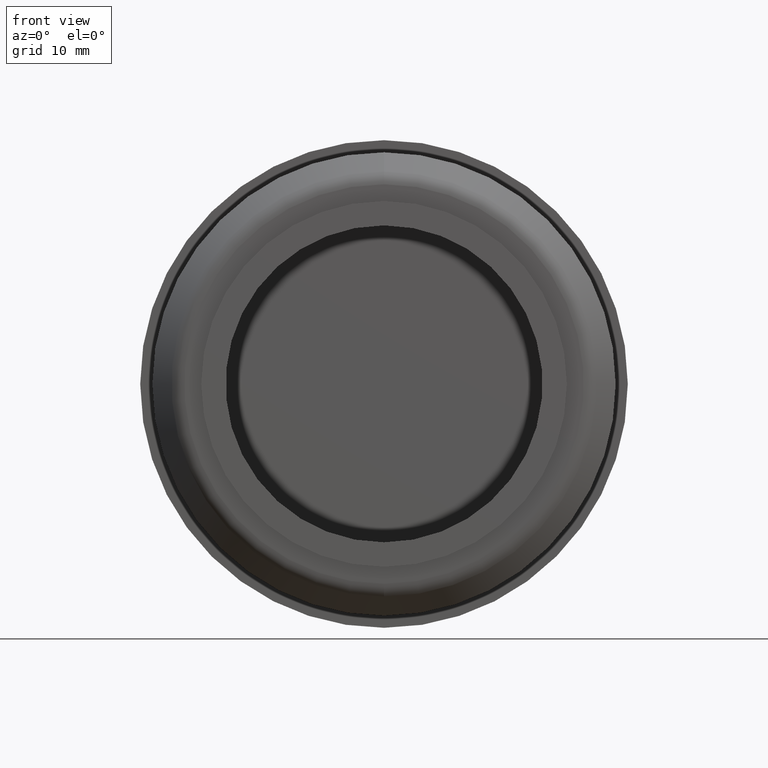
[diagram: clean part render]
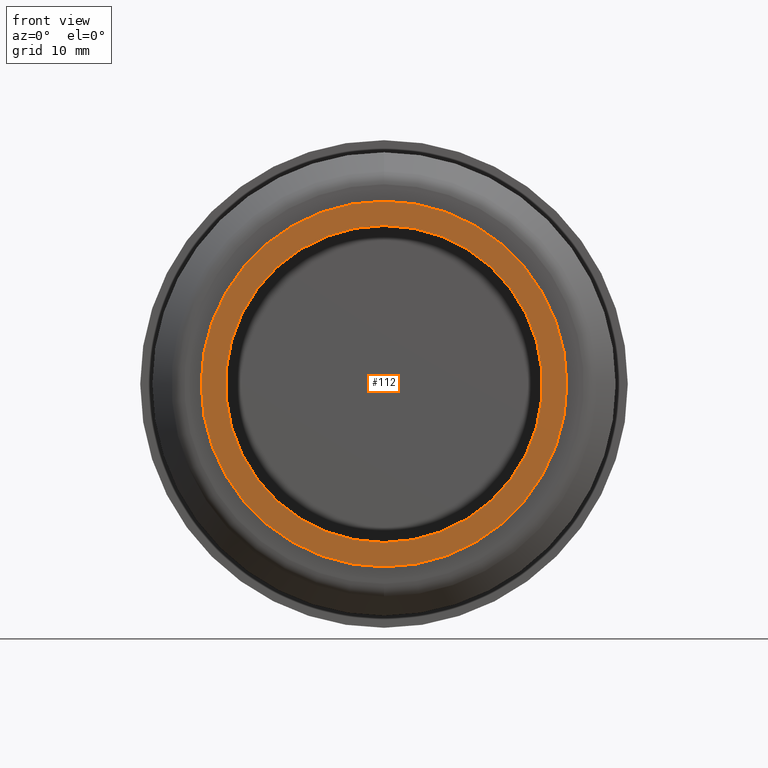
[diagram: same view with one face highlighted and labeled with its STEP entity id]
A machine part, front view. The second image highlights one B-rep face of the part: STEP entity #112.
In plain terms, the highlighted planar face has unit normal (0, -1, -0).
Its self-contained STEP definition (entity closure, byte-faithful):
#35 = AXIS2_PLACEMENT_3D ( 'NONE', #127, #1096, #320 ) ;
#112 = ADVANCED_FACE ( 'NONE', ( #839, #932 ), #309, .T. ) ;
#113 = DIRECTION ( 'NONE',  ( 0.000000000000000000, 0.000000000000000000, -1.000000000000000000 ) ) ;
#127 = CARTESIAN_POINT ( 'NONE',  ( 15.00000000000000178, 0.000000000000000000, 0.000000000000000000 ) ) ;
#158 = DIRECTION ( 'NONE',  ( 0.000000000000000000, 0.000000000000000000, -1.000000000000000000 ) ) ;
#160 = VERTEX_POINT ( 'NONE', #860 ) ;
#255 = CARTESIAN_POINT ( 'NONE',  ( 0.000000000000000000, 0.000000000000000000, 0.000000000000000000 ) ) ;
#272 = CARTESIAN_POINT ( 'NONE',  ( 0.000000000000000000, 0.000000000000000000, 0.000000000000000000 ) ) ;
#309 = PLANE ( 'NONE',  #35 ) ;
#320 = DIRECTION ( 'NONE',  ( 0.000000000000000000, 0.000000000000000000, -1.000000000000000000 ) ) ;
#349 = CIRCLE ( 'NONE', #518, 15.00000000000000178 ) ;
#357 = CARTESIAN_POINT ( 'NONE',  ( 1.592040838891559095E-15, 0.000000000000000000, 13.00000000000000000 ) ) ;
#359 = EDGE_LOOP ( 'NONE', ( #916, #582 ) ) ;
#407 = AXIS2_PLACEMENT_3D ( 'NONE', #697, #955, #158 ) ;
#420 = CIRCLE ( 'NONE', #445, 13.00000000000000000 ) ;
#427 = EDGE_LOOP ( 'NONE', ( #840, #467 ) ) ;
#428 = CARTESIAN_POINT ( 'NONE',  ( 0.000000000000000000, 0.000000000000000000, -15.00000000000000178 ) ) ;
#433 = VERTEX_POINT ( 'NONE', #428 ) ;
#439 = EDGE_CURVE ( 'NONE', #820, #824, #420, .T. ) ;
#445 = AXIS2_PLACEMENT_3D ( 'NONE', #272, #456, #1067 ) ;
#456 = DIRECTION ( 'NONE',  ( -0.000000000000000000, -1.000000000000000000, -0.000000000000000000 ) ) ;
#467 = ORIENTED_EDGE ( 'NONE', *, *, #836, .T. ) ;
#472 = DIRECTION ( 'NONE',  ( -0.000000000000000000, -1.000000000000000000, -0.000000000000000000 ) ) ;
#518 = AXIS2_PLACEMENT_3D ( 'NONE', #255, #708, #1053 ) ;
#519 = CARTESIAN_POINT ( 'NONE',  ( 0.000000000000000000, 0.000000000000000000, -13.00000000000000000 ) ) ;
#582 = ORIENTED_EDGE ( 'NONE', *, *, #439, .F. ) ;
#697 = CARTESIAN_POINT ( 'NONE',  ( 0.000000000000000000, 0.000000000000000000, 0.000000000000000000 ) ) ;
#708 = DIRECTION ( 'NONE',  ( -0.000000000000000000, -1.000000000000000000, -0.000000000000000000 ) ) ;
#774 = EDGE_CURVE ( 'NONE', #433, #160, #349, .T. ) ;
#820 = VERTEX_POINT ( 'NONE', #357 ) ;
#824 = VERTEX_POINT ( 'NONE', #519 ) ;
#836 = EDGE_CURVE ( 'NONE', #160, #433, #1072, .T. ) ;
#839 = FACE_OUTER_BOUND ( 'NONE', #427, .T. ) ;
#840 = ORIENTED_EDGE ( 'NONE', *, *, #774, .T. ) ;
#849 = EDGE_CURVE ( 'NONE', #824, #820, #1110, .T. ) ;
#860 = CARTESIAN_POINT ( 'NONE',  ( 1.836970198721029983E-15, 0.000000000000000000, 15.00000000000000178 ) ) ;
#916 = ORIENTED_EDGE ( 'NONE', *, *, #849, .F. ) ;
#932 = FACE_BOUND ( 'NONE', #359, .T. ) ;
#955 = DIRECTION ( 'NONE',  ( -0.000000000000000000, -1.000000000000000000, -0.000000000000000000 ) ) ;
#1053 = DIRECTION ( 'NONE',  ( 0.000000000000000000, 0.000000000000000000, -1.000000000000000000 ) ) ;
#1067 = DIRECTION ( 'NONE',  ( 0.000000000000000000, 0.000000000000000000, -1.000000000000000000 ) ) ;
#1072 = CIRCLE ( 'NONE', #407, 15.00000000000000178 ) ;
#1079 = CARTESIAN_POINT ( 'NONE',  ( 0.000000000000000000, 0.000000000000000000, 0.000000000000000000 ) ) ;
#1093 = AXIS2_PLACEMENT_3D ( 'NONE', #1079, #472, #113 ) ;
#1096 = DIRECTION ( 'NONE',  ( 0.000000000000000000, -1.000000000000000000, -0.000000000000000000 ) ) ;
#1110 = CIRCLE ( 'NONE', #1093, 13.00000000000000000 ) ;